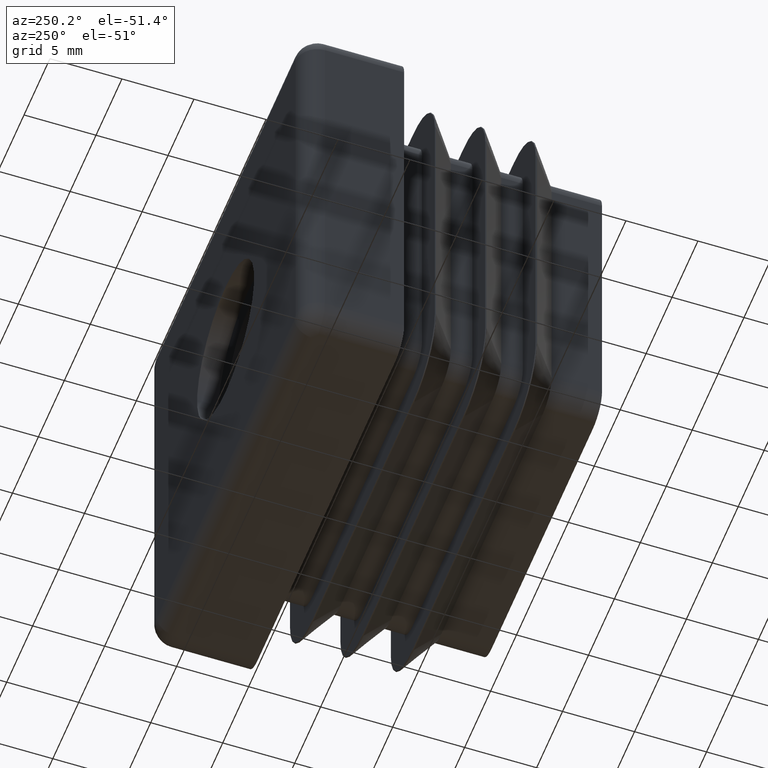
[diagram: clean part render]
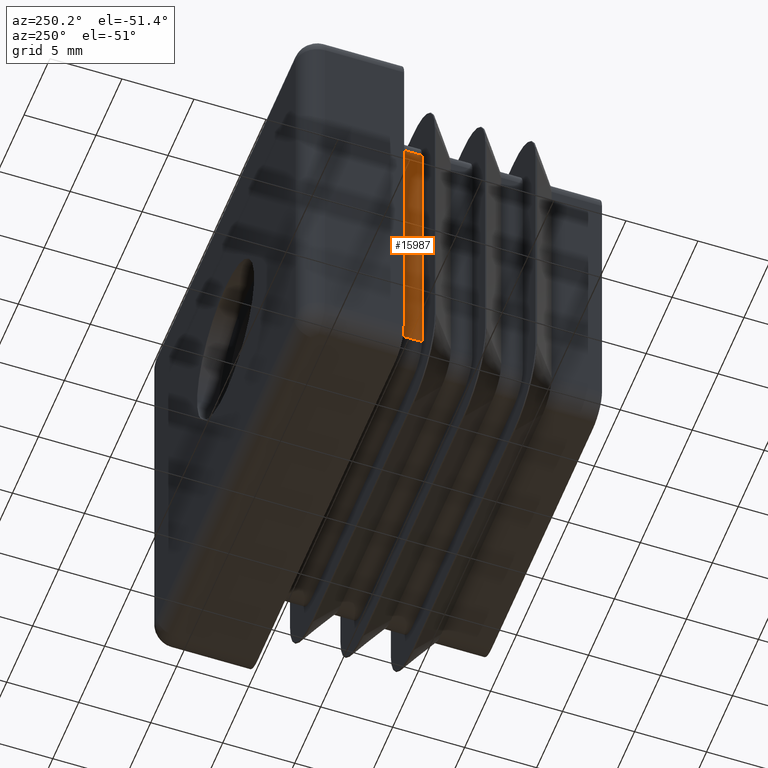
[diagram: same view with one face highlighted and labeled with its STEP entity id]
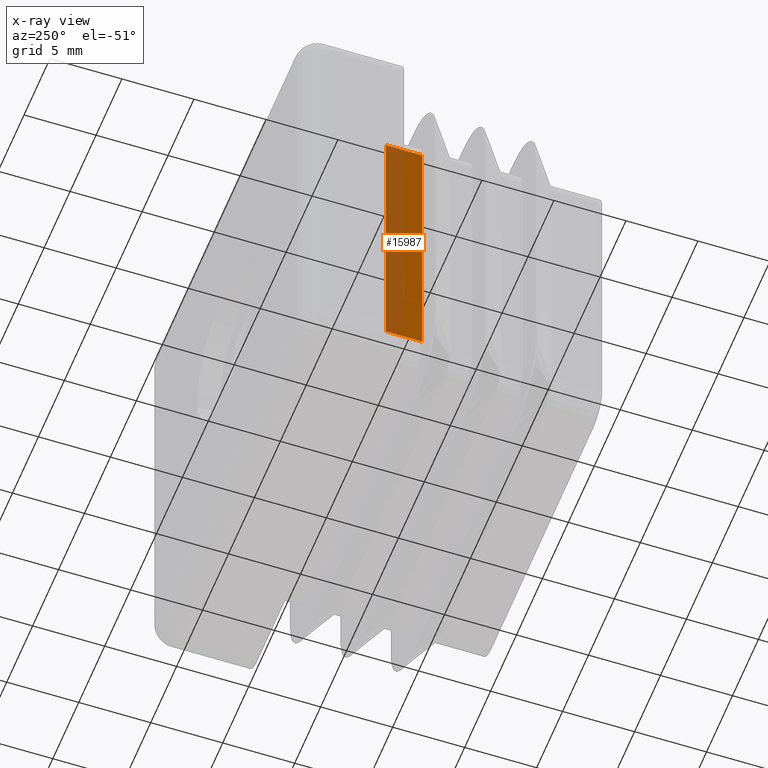
[diagram: x-ray of the same camera — body ghosted, the highlighted face saturated]
A machine part, auxiliary view. The second image highlights one B-rep face of the part: STEP entity #15987.
The next image is the same camera in x-ray: the body ghosted, the highlighted face saturated — about 49% of this face is hidden behind the body in this view.
In plain terms, the highlighted planar face has unit normal (1, 0, 0).
Its self-contained STEP definition (entity closure, byte-faithful):
#637 = PLANE ( 'NONE',  #4357 ) ;
#1405 = CARTESIAN_POINT ( 'NONE',  ( -11.50000000000000355, 0.000000000000000000, 11.50000000000000000 ) ) ;
#1611 = CARTESIAN_POINT ( 'NONE',  ( -11.50000000000000000, 0.000000000000000000, -9.749999999999998224 ) ) ;
#1784 = ORIENTED_EDGE ( 'NONE', *, *, #22057, .T. ) ;
#1987 = VECTOR ( 'NONE', #6324, 1000.000000000000000 ) ;
#2762 = CARTESIAN_POINT ( 'NONE',  ( -11.50000000000000178, -2.500000000000000000, 9.749999999999998224 ) ) ;
#2919 = VERTEX_POINT ( 'NONE', #17106 ) ;
#4253 = LINE ( 'NONE', #12027, #20967 ) ;
#4357 = AXIS2_PLACEMENT_3D ( 'NONE', #9262, #5735, #21318 ) ;
#4709 = DIRECTION ( 'NONE',  ( 1.779203565104417868E-16, -0.000000000000000000, -1.000000000000000000 ) ) ;
#5045 = CARTESIAN_POINT ( 'NONE',  ( -11.50000000000000000, -2.500000000000000444, -9.749999999999998224 ) ) ;
#5735 = DIRECTION ( 'NONE',  ( 1.000000000000000000, 0.000000000000000000, 1.508455196501571429E-16 ) ) ;
#6324 = DIRECTION ( 'NONE',  ( -0.000000000000000000, -1.000000000000000000, -0.000000000000000000 ) ) ;
#6803 = EDGE_CURVE ( 'NONE', #19855, #11055, #7737, .T. ) ;
#6861 = ORIENTED_EDGE ( 'NONE', *, *, #21892, .F. ) ;
#7389 = LINE ( 'NONE', #21983, #1987 ) ;
#7737 = LINE ( 'NONE', #1405, #8271 ) ;
#8271 = VECTOR ( 'NONE', #15061, 1000.000000000000000 ) ;
#9262 = CARTESIAN_POINT ( 'NONE',  ( -11.50000000000000355, -15.00000000000000000, 11.50000000000000000 ) ) ;
#10290 = EDGE_CURVE ( 'NONE', #11055, #15139, #7389, .T. ) ;
#11055 = VERTEX_POINT ( 'NONE', #1611 ) ;
#12027 = CARTESIAN_POINT ( 'NONE',  ( -11.50000000000000355, -15.00000000000000000, 9.750000000000000000 ) ) ;
#12109 = DIRECTION ( 'NONE',  ( -0.000000000000000000, 1.000000000000000000, 0.000000000000000000 ) ) ;
#12315 = CARTESIAN_POINT ( 'NONE',  ( -11.50000000000000355, 0.000000000000000000, 9.750000000000000000 ) ) ;
#12566 = EDGE_LOOP ( 'NONE', ( #16920, #6861, #1784, #19980 ) ) ;
#13586 = FACE_OUTER_BOUND ( 'NONE', #12566, .T. ) ;
#15061 = DIRECTION ( 'NONE',  ( 1.508455196501571429E-16, -0.000000000000000000, -1.000000000000000000 ) ) ;
#15139 = VERTEX_POINT ( 'NONE', #5045 ) ;
#15987 = ADVANCED_FACE ( 'NONE', ( #13586 ), #637, .F. ) ;
#16920 = ORIENTED_EDGE ( 'NONE', *, *, #10290, .T. ) ;
#17106 = CARTESIAN_POINT ( 'NONE',  ( -11.50000000000000355, -2.499999999999998668, 9.750000000000000000 ) ) ;
#19855 = VERTEX_POINT ( 'NONE', #12315 ) ;
#19980 = ORIENTED_EDGE ( 'NONE', *, *, #6803, .T. ) ;
#20967 = VECTOR ( 'NONE', #12109, 1000.000000000000000 ) ;
#21247 = VECTOR ( 'NONE', #4709, 1000.000000000000000 ) ;
#21318 = DIRECTION ( 'NONE',  ( 1.508455196501571429E-16, 0.000000000000000000, -1.000000000000000000 ) ) ;
#21495 = LINE ( 'NONE', #2762, #21247 ) ;
#21892 = EDGE_CURVE ( 'NONE', #2919, #15139, #21495, .T. ) ;
#21983 = CARTESIAN_POINT ( 'NONE',  ( -11.50000000000000000, -15.00000000000000000, -9.749999999999998224 ) ) ;
#22057 = EDGE_CURVE ( 'NONE', #2919, #19855, #4253, .T. ) ;